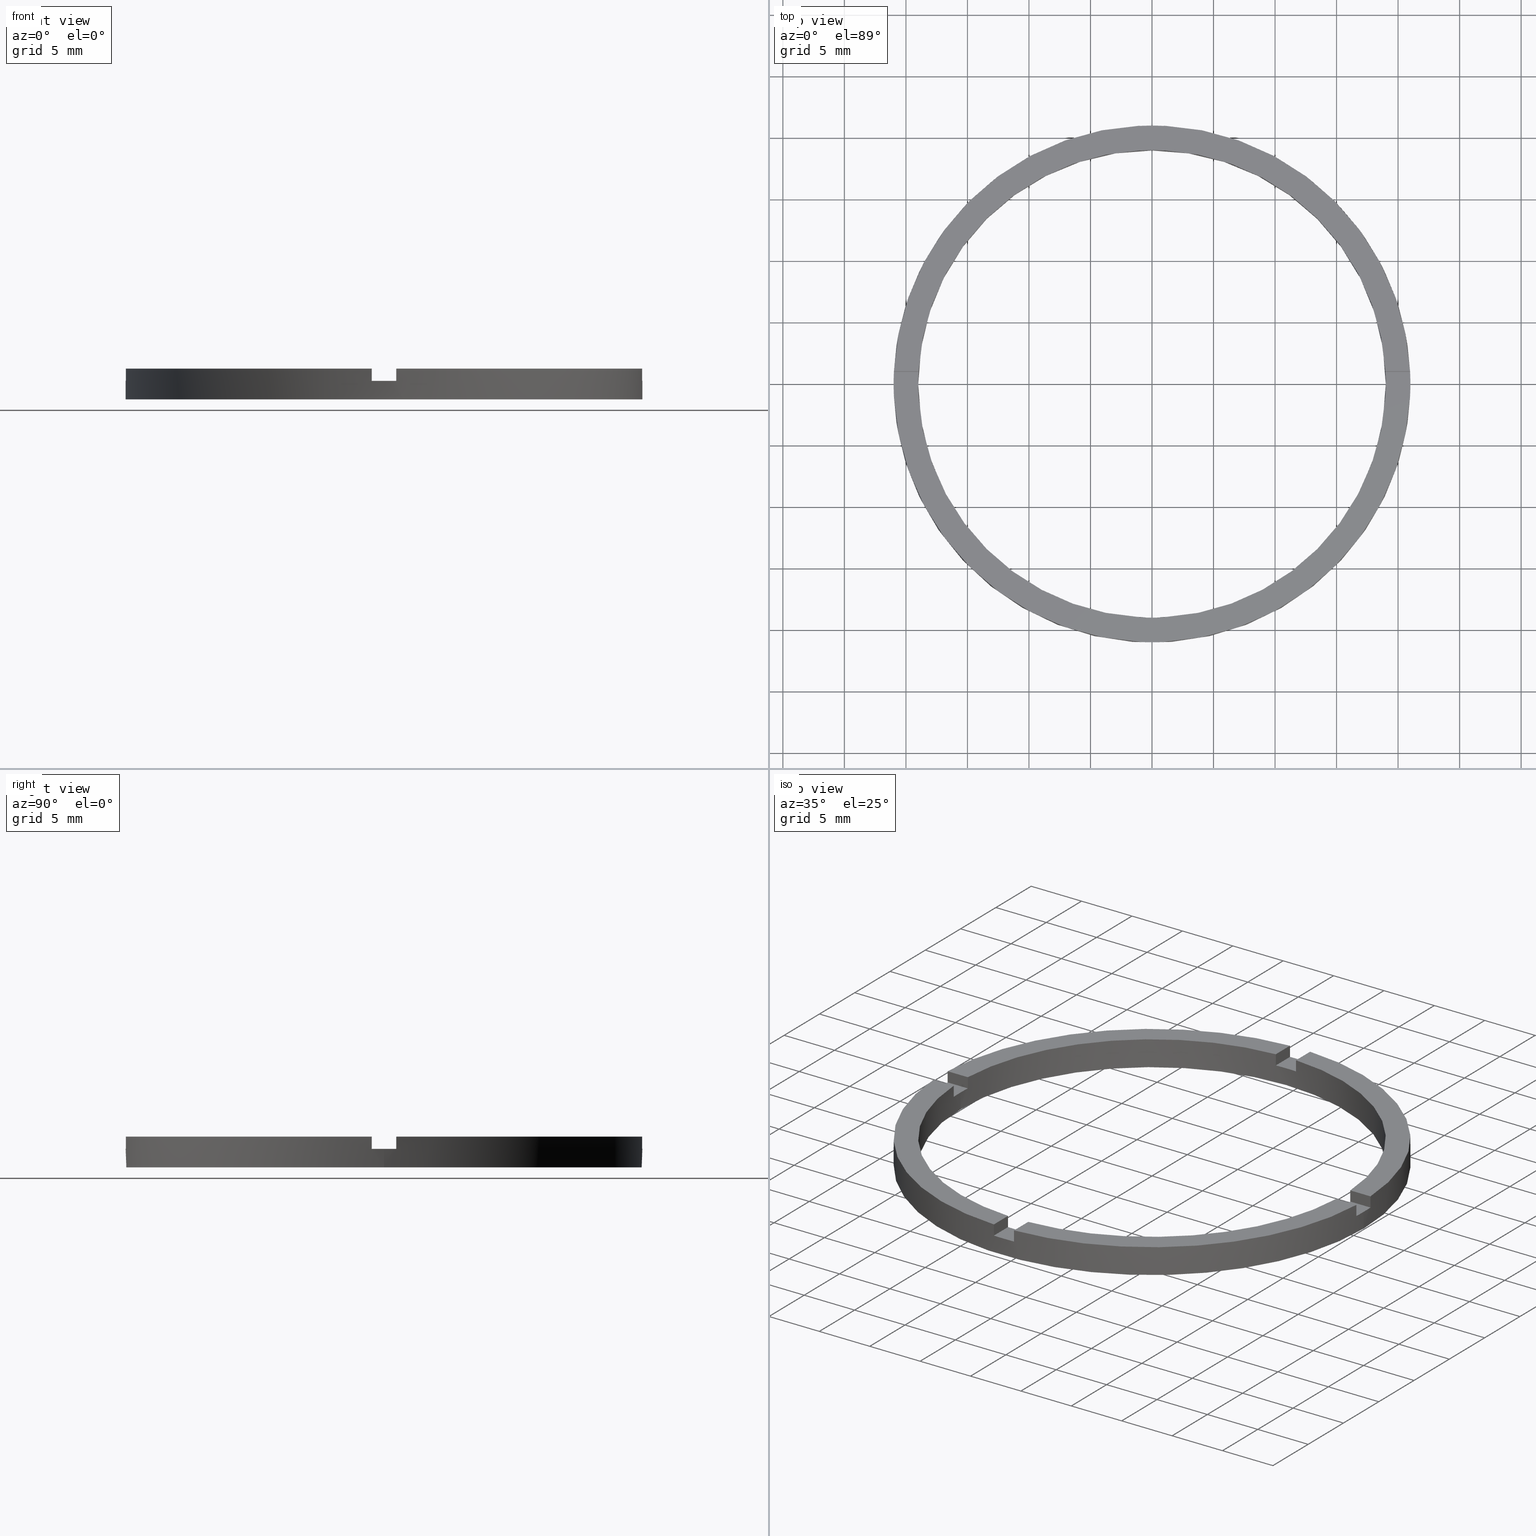
[diagram: canonical four-view strip — front | top / right | iso, engineering-drawing reading convention]
A machine part, canonical four-view strip (front | top / right | iso — engineering-drawing reading convention). The complete STEP part file that produces these views, byte-faithful:
ISO-10303-21;
HEADER;
FILE_DESCRIPTION (( 'STEP AP203' ),
    '1' );
FILE_NAME ('514089.step',
    '2024-12-26T02:36:29',
    ( 'MSI' ),
    ( '' ),
    'SwSTEP 2.0',
    'SolidWorks 2020',
    '' );
FILE_SCHEMA (( 'CONFIG_CONTROL_DESIGN' ));
ENDSEC;

DATA;
#1 = MECHANICAL_CONTEXT ( 'NONE', #243, 'mechanical' ) ;
#2 = EDGE_CURVE ( 'NONE', #498, #31, #642, .T. ) ;
#3 = CARTESIAN_POINT ( 'NONE',  ( -11.00000000000018652, 0.9999999999999770184, 1.500000000000000000 ) ) ;
#4 = EDGE_CURVE ( 'NONE', #311, #121, #358, .T. ) ;
#5 = CARTESIAN_POINT ( 'NONE',  ( -1.000000000000162759, -11.00000000000018119, 2.500000000000000000 ) ) ;
#6 = DIRECTION ( 'NONE',  ( 0.000000000000000000, 0.000000000000000000, 1.000000000000000000 ) ) ;
#7 = CARTESIAN_POINT ( 'NONE',  ( -19.00000000000000000, 0.000000000000000000, 2.500000000000000000 ) ) ;
#8 = CARTESIAN_POINT ( 'NONE',  ( 0.000000000000000000, 0.000000000000000000, 2.500000000000000000 ) ) ;
#9 = DIRECTION ( 'NONE',  ( 0.000000000000000000, 0.000000000000000000, 1.000000000000000000 ) ) ;
#10 = PRODUCT_RELATED_PRODUCT_CATEGORY ( 'detail', '', ( #645 ) ) ;
#11 = ORIENTED_EDGE ( 'NONE', *, *, #262, .F. ) ;
#12 = CARTESIAN_POINT ( 'NONE',  ( 0.000000000000000000, 0.000000000000000000, 1.500000000000000000 ) ) ;
#13 = ORIENTED_EDGE ( 'NONE', *, *, #660, .T. ) ;
#14 = CARTESIAN_POINT ( 'NONE',  ( -11.00000000000018652, -1.000000000000023093, 2.500000000000000000 ) ) ;
#15 = VERTEX_POINT ( 'NONE', #753 ) ;
#16 = ORIENTED_EDGE ( 'NONE', *, *, #94, .F. ) ;
#17 = EDGE_CURVE ( 'NONE', #326, #493, #382, .T. ) ;
#18 = ORIENTED_EDGE ( 'NONE', *, *, #527, .T. ) ;
#19 = VERTEX_POINT ( 'NONE', #142 ) ;
#20 = ORIENTED_EDGE ( 'NONE', *, *, #391, .T. ) ;
#21 = DIRECTION ( 'NONE',  ( -0.000000000000000000, -0.000000000000000000, -1.000000000000000000 ) ) ;
#22 = ORIENTED_EDGE ( 'NONE', *, *, #4, .F. ) ;
#23 = PLANE ( 'NONE',  #76 ) ;
#24 = AXIS2_PLACEMENT_3D ( 'NONE', #198, #324, #559 ) ;
#25 = ORIENTED_EDGE ( 'NONE', *, *, #89, .T. ) ;
#26 = ORIENTED_EDGE ( 'NONE', *, *, #439, .T. ) ;
#27 = ORIENTED_EDGE ( 'NONE', *, *, #251, .T. ) ;
#28 = CARTESIAN_POINT ( 'NONE',  ( -20.97617696340303084, -1.000000000000024647, 2.500000000000000000 ) ) ;
#29 = ORIENTED_EDGE ( 'NONE', *, *, #262, .T. ) ;
#30 = PERSON_AND_ORGANIZATION ( #537, #307 ) ;
#31 = VERTEX_POINT ( 'NONE', #265 ) ;
#32 = LOCAL_TIME ( 10, 36, 29.00000000000000000, #565 ) ;
#33 = ORIENTED_EDGE ( 'NONE', *, *, #467, .F. ) ;
#34 = DIRECTION ( 'NONE',  ( 0.000000000000000000, 0.000000000000000000, 1.000000000000000000 ) ) ;
#35 = DIRECTION ( 'NONE',  ( -1.301042606982605074E-16, 1.000000000000000000, 0.000000000000000000 ) ) ;
#36 = VERTEX_POINT ( 'NONE', #697 ) ;
#37 = DIRECTION ( 'NONE',  ( 0.000000000000000000, 0.000000000000000000, 1.000000000000000000 ) ) ;
#38 = CARTESIAN_POINT ( 'NONE',  ( -19.00000000000000000, 0.000000000000000000, 0.000000000000000000 ) ) ;
#39 = ORIENTED_EDGE ( 'NONE', *, *, #299, .T. ) ;
#40 = ORIENTED_EDGE ( 'NONE', *, *, #507, .F. ) ;
#41 = PERSON_AND_ORGANIZATION ( #537, #307 ) ;
#42 = CARTESIAN_POINT ( 'NONE',  ( -18.97366596101027625, 0.9999999999999756861, 2.500000000000000000 ) ) ;
#43 = PLANE ( 'NONE',  #343 ) ;
#44 = VERTEX_POINT ( 'NONE', #335 ) ;
#45 = PERSON_AND_ORGANIZATION ( #537, #307 ) ;
#46 = DIRECTION ( 'NONE',  ( 0.000000000000000000, 0.000000000000000000, 1.000000000000000000 ) ) ;
#47 = EDGE_CURVE ( 'NONE', #498, #728, #123, .T. ) ;
#48 = ORIENTED_EDGE ( 'NONE', *, *, #614, .F. ) ;
#49 = PERSON_AND_ORGANIZATION ( #537, #307 ) ;
#50 = CARTESIAN_POINT ( 'NONE',  ( -1.000000000000161204, -20.97617696340302018, 2.500000000000000000 ) ) ;
#51 = ORIENTED_EDGE ( 'NONE', *, *, #196, .F. ) ;
#52 = APPROVAL_STATUS ( 'not_yet_approved' ) ;
#53 = EDGE_LOOP ( 'NONE', ( #203, #314, #626, #204, #226, #585 ) ) ;
#54 = DIRECTION ( 'NONE',  ( 1.000000000000000000, 0.000000000000000000, 0.000000000000000000 ) ) ;
#55 = CARTESIAN_POINT ( 'NONE',  ( 0.9999999999998380185, -20.97617696340303794, 1.500000000000000000 ) ) ;
#56 = VERTEX_POINT ( 'NONE', #149 ) ;
#57 = DIRECTION ( 'NONE',  ( 0.000000000000000000, 0.000000000000000000, 1.000000000000000000 ) ) ;
#58 = ORIENTED_EDGE ( 'NONE', *, *, #186, .T. ) ;
#59 = CARTESIAN_POINT ( 'NONE',  ( 0.000000000000000000, 0.000000000000000000, 1.500000000000000000 ) ) ;
#60 = AXIS2_PLACEMENT_3D ( 'NONE', #463, #91, #768 ) ;
#61 = VERTEX_POINT ( 'NONE', #219 ) ;
#62 = LOCAL_TIME ( 10, 36, 29.00000000000000000, #330 ) ;
#63 = ADVANCED_FACE ( 'NONE', ( #92 ), #638, .T. ) ;
#64 =( NAMED_UNIT ( * ) PLANE_ANGLE_UNIT ( ) SI_UNIT ( $, .RADIAN. ) );
#65 = PRODUCT_DEFINITION_FORMATION_WITH_SPECIFIED_SOURCE ( '�κ�', '', #645, .NOT_KNOWN. ) ;
#66 = CALENDAR_DATE ( 2024, 26, 12 ) ;
#67 = DIRECTION ( 'NONE',  ( -0.000000000000000000, -0.000000000000000000, -1.000000000000000000 ) ) ;
#68 = DIRECTION ( 'NONE',  ( 0.000000000000000000, 1.000000000000000000, 0.000000000000000000 ) ) ;
#69 = AXIS2_PLACEMENT_3D ( 'NONE', #228, #37, #275 ) ;
#70 = CARTESIAN_POINT ( 'NONE',  ( 0.9999999999999740208, 18.97366596101027270, 2.500000000000000000 ) ) ;
#71 = DATE_AND_TIME ( #75, #597 ) ;
#72 = CARTESIAN_POINT ( 'NONE',  ( 18.97366596101028335, 0.9999999999998416822, 2.500000000000000000 ) ) ;
#73 = DATE_AND_TIME ( #613, #340 ) ;
#74 = COORDINATED_UNIVERSAL_TIME_OFFSET ( 8, 0, .AHEAD. ) ;
#75 = CALENDAR_DATE ( 2024, 26, 12 ) ;
#76 = AXIS2_PLACEMENT_3D ( 'NONE', #267, #392, #363 ) ;
#77 = DIRECTION ( 'NONE',  ( -0.000000000000000000, -1.000000000000000000, -0.000000000000000000 ) ) ;
#78 = CARTESIAN_POINT ( 'NONE',  ( -1.000000000000025535, 18.97366596101027625, 2.500000000000000000 ) ) ;
#79 = DIRECTION ( 'NONE',  ( 1.000000000000000000, 1.734723475976806848E-16, -0.000000000000000000 ) ) ;
#80 = DIRECTION ( 'NONE',  ( 0.000000000000000000, 0.000000000000000000, 1.000000000000000000 ) ) ;
#81 = AXIS2_PLACEMENT_3D ( 'NONE', #465, #256, #524 ) ;
#82 = CARTESIAN_POINT ( 'NONE',  ( -1.000000000000025535, 11.00000000000000178, 1.500000000000000000 ) ) ;
#83 = DIRECTION ( 'NONE',  ( 1.000000000000000000, 4.336808689942017120E-17, 0.000000000000000000 ) ) ;
#84 = PLANE ( 'NONE',  #164 ) ;
#85 = DIRECTION ( 'NONE',  ( 0.000000000000000000, 0.000000000000000000, 1.000000000000000000 ) ) ;
#86 = PRODUCT_DEFINITION ( 'δ֪', '', #65, #618 ) ;
#87 = DIRECTION ( 'NONE',  ( 0.000000000000000000, -0.000000000000000000, 1.000000000000000000 ) ) ;
#88 = CARTESIAN_POINT ( 'NONE',  ( 0.9999999999998371303, -11.00000000000018119, 1.500000000000000000 ) ) ;
#89 = EDGE_CURVE ( 'NONE', #206, #61, #653, .T. ) ;
#90 = PLANE ( 'NONE',  #152 ) ;
#91 = DIRECTION ( 'NONE',  ( 0.000000000000000000, 0.000000000000000000, 1.000000000000000000 ) ) ;
#92 = FACE_OUTER_BOUND ( 'NONE', #648, .T. ) ;
#93 = LINE ( 'NONE', #162, #107 ) ;
#94 = EDGE_CURVE ( 'NONE', #543, #287, #93, .T. ) ;
#95 = DIRECTION ( 'NONE',  ( -1.000000000000000000, -4.336808689942017120E-17, -0.000000000000000000 ) ) ;
#96 = ORIENTED_EDGE ( 'NONE', *, *, #439, .F. ) ;
#97 = CC_DESIGN_DATE_AND_TIME_ASSIGNMENT ( #608, #488, ( #86 ) ) ;
#98 = VECTOR ( 'NONE', #445, 1000.000000000000000 ) ;
#99 = CYLINDRICAL_SURFACE ( 'NONE', #316, 21.00000000000000000 ) ;
#100 = PERSON_AND_ORGANIZATION_ROLE ( 'creator' ) ;
#101 = CARTESIAN_POINT ( 'NONE',  ( -20.97617696340303439, 0.9999999999999753530, 1.500000000000000000 ) ) ;
#102 = DIRECTION ( 'NONE',  ( -0.000000000000000000, -0.000000000000000000, -1.000000000000000000 ) ) ;
#103 = EDGE_CURVE ( 'NONE', #492, #300, #359, .T. ) ;
#104 = FACE_OUTER_BOUND ( 'NONE', #53, .T. ) ;
#105 = ORIENTED_EDGE ( 'NONE', *, *, #761, .T. ) ;
#106 = CARTESIAN_POINT ( 'NONE',  ( 0.9999999999999740208, 20.97617696340303084, 1.500000000000000000 ) ) ;
#107 = VECTOR ( 'NONE', #557, 1000.000000000000000 ) ;
#108 = EDGE_CURVE ( 'NONE', #571, #250, #629, .T. ) ;
#109 = CARTESIAN_POINT ( 'NONE',  ( -21.00000000000000000, 0.000000000000000000, 1.500000000000000000 ) ) ;
#110 =( NAMED_UNIT ( * ) SI_UNIT ( $, .STERADIAN. ) SOLID_ANGLE_UNIT ( ) );
#111 = FACE_OUTER_BOUND ( 'NONE', #278, .T. ) ;
#112 = DIRECTION ( 'NONE',  ( 1.000000000000000000, 0.000000000000000000, 0.000000000000000000 ) ) ;
#113 = VECTOR ( 'NONE', #736, 1000.000000000000000 ) ;
#114 = AXIS2_PLACEMENT_3D ( 'NONE', #350, #415, #486 ) ;
#115 = LINE ( 'NONE', #437, #132 ) ;
#116 = CIRCLE ( 'NONE', #81, 19.00000000000000000 ) ;
#117 = EDGE_CURVE ( 'NONE', #222, #253, #356, .T. ) ;
#118 = CIRCLE ( 'NONE', #264, 21.00000000000000000 ) ;
#119 = CARTESIAN_POINT ( 'NONE',  ( -18.97366596101027625, 0.9999999999999756861, 2.500000000000000000 ) ) ;
#120 = VECTOR ( 'NONE', #484, 1000.000000000000000 ) ;
#121 = VERTEX_POINT ( 'NONE', #42 ) ;
#122 = ORIENTED_EDGE ( 'NONE', *, *, #430, .F. ) ;
#123 = LINE ( 'NONE', #760, #651 ) ;
#124 = CARTESIAN_POINT ( 'NONE',  ( 20.97617696340304150, 0.9999999999998416822, 2.500000000000000000 ) ) ;
#125 = LINE ( 'NONE', #5, #669 ) ;
#126 = AXIS2_PLACEMENT_3D ( 'NONE', #221, #338, #654 ) ;
#127 = CIRCLE ( 'NONE', #396, 21.00000000000000000 ) ;
#128 = EDGE_CURVE ( 'NONE', #492, #717, #116, .T. ) ;
#129 = CC_DESIGN_SECURITY_CLASSIFICATION ( #520, ( #65 ) ) ;
#130 = LINE ( 'NONE', #743, #387 ) ;
#131 = LINE ( 'NONE', #78, #390 ) ;
#132 = VECTOR ( 'NONE', #320, 1000.000000000000000 ) ;
#133 = CARTESIAN_POINT ( 'NONE',  ( 0.000000000000000000, 0.000000000000000000, 2.500000000000000000 ) ) ;
#134 = DIRECTION ( 'NONE',  ( -0.000000000000000000, -0.000000000000000000, -1.000000000000000000 ) ) ;
#135 = AXIS2_PLACEMENT_3D ( 'NONE', #530, #21, #286 ) ;
#136 = EDGE_CURVE ( 'NONE', #19, #543, #628, .T. ) ;
#137 = CARTESIAN_POINT ( 'NONE',  ( 0.000000000000000000, 0.000000000000000000, 1.500000000000000000 ) ) ;
#138 = CARTESIAN_POINT ( 'NONE',  ( 20.97617696340302373, -1.000000000000158318, 2.500000000000000000 ) ) ;
#139 = EDGE_CURVE ( 'NONE', #19, #15, #374, .T. ) ;
#140 = VECTOR ( 'NONE', #701, 1000.000000000000000 ) ;
#141 = FACE_OUTER_BOUND ( 'NONE', #562, .T. ) ;
#142 = CARTESIAN_POINT ( 'NONE',  ( 21.00000000000000000, 2.571758278209441661E-15, 1.500000000000000000 ) ) ;
#143 = VECTOR ( 'NONE', #270, 1000.000000000000000 ) ;
#144 = LINE ( 'NONE', #248, #689 ) ;
#145 = CARTESIAN_POINT ( 'NONE',  ( 0.000000000000000000, 0.000000000000000000, 1.500000000000000000 ) ) ;
#146 = FACE_OUTER_BOUND ( 'NONE', #503, .T. ) ;
#147 = EDGE_CURVE ( 'NONE', #493, #717, #383, .T. ) ;
#148 = CIRCLE ( 'NONE', #433, 21.00000000000000000 ) ;
#149 = CARTESIAN_POINT ( 'NONE',  ( -1.000000000000025091, 18.97366596101027270, 1.500000000000000000 ) ) ;
#150 = FACE_OUTER_BOUND ( 'NONE', #195, .T. ) ;
#151 = PLANE ( 'NONE',  #505 ) ;
#152 = AXIS2_PLACEMENT_3D ( 'NONE', #289, #405, #478 ) ;
#153 = VECTOR ( 'NONE', #718, 1000.000000000000000 ) ;
#154 = FACE_BOUND ( 'NONE', #472, .T. ) ;
#155 = EDGE_CURVE ( 'NONE', #748, #515, #118, .T. ) ;
#156 = VECTOR ( 'NONE', #95, 1000.000000000000000 ) ;
#157 = LINE ( 'NONE', #72, #406 ) ;
#158 = CARTESIAN_POINT ( 'NONE',  ( -20.97617696340303439, 0.9999999999999753530, 2.500000000000000000 ) ) ;
#159 = CYLINDRICAL_SURFACE ( 'NONE', #135, 19.00000000000000000 ) ;
#160 = PERSON_AND_ORGANIZATION_ROLE ( 'creator' ) ;
#161 = FACE_OUTER_BOUND ( 'NONE', #649, .T. ) ;
#162 = CARTESIAN_POINT ( 'NONE',  ( 10.99999999999999645, 0.9999999999998412381, 1.500000000000000000 ) ) ;
#163 = DIRECTION ( 'NONE',  ( 1.000000000000000000, 1.734723475976806848E-16, 0.000000000000000000 ) ) ;
#164 = AXIS2_PLACEMENT_3D ( 'NONE', #339, #393, #163 ) ;
#165 = CIRCLE ( 'NONE', #69, 19.00000000000000000 ) ;
#166 = CARTESIAN_POINT ( 'NONE',  ( 0.000000000000000000, 0.000000000000000000, 0.000000000000000000 ) ) ;
#167 = ORIENTED_EDGE ( 'NONE', *, *, #258, .T. ) ;
#168 = EDGE_CURVE ( 'NONE', #319, #15, #632, .T. ) ;
#169 = CIRCLE ( 'NONE', #695, 19.00000000000000000 ) ;
#170 = CC_DESIGN_PERSON_AND_ORGANIZATION_ASSIGNMENT ( #327, #100, ( #65 ) ) ;
#171 = FACE_OUTER_BOUND ( 'NONE', #590, .T. ) ;
#172 = ADVANCED_FACE ( 'NONE', ( #111 ), #99, .T. ) ;
#173 = DATE_TIME_ROLE ( 'classification_date' ) ;
#174 = CIRCLE ( 'NONE', #579, 21.00000000000000000 ) ;
#175 = LINE ( 'NONE', #666, #442 ) ;
#176 = DIRECTION ( 'NONE',  ( -0.000000000000000000, -0.000000000000000000, -1.000000000000000000 ) ) ;
#177 = VERTEX_POINT ( 'NONE', #101 ) ;
#178 = CYLINDRICAL_SURFACE ( 'NONE', #681, 19.00000000000000000 ) ;
#179 = AXIS2_PLACEMENT_3D ( 'NONE', #641, #706, #730 ) ;
#180 = CARTESIAN_POINT ( 'NONE',  ( 0.000000000000000000, 0.000000000000000000, 1.500000000000000000 ) ) ;
#181 = PERSON_AND_ORGANIZATION_ROLE ( 'design_supplier' ) ;
#182 = LINE ( 'NONE', #82, #446 ) ;
#183 = ADVANCED_FACE ( 'NONE', ( #656 ), #777, .F. ) ;
#184 = CIRCLE ( 'NONE', #774, 19.00000000000000000 ) ;
#185 = DIRECTION ( 'NONE',  ( 1.000000000000000000, 0.000000000000000000, 0.000000000000000000 ) ) ;
#186 = EDGE_CURVE ( 'NONE', #748, #294, #386, .T. ) ;
#187 = ORIENTED_EDGE ( 'NONE', *, *, #299, .F. ) ;
#188 = VECTOR ( 'NONE', #763, 1000.000000000000000 ) ;
#189 = DIRECTION ( 'NONE',  ( 1.000000000000000000, 0.000000000000000000, 0.000000000000000000 ) ) ;
#190 = EDGE_LOOP ( 'NONE', ( #459, #624, #216, #581 ) ) ;
#191 = FACE_OUTER_BOUND ( 'NONE', #490, .T. ) ;
#192 = VECTOR ( 'NONE', #427, 1000.000000000000000 ) ;
#193 = EDGE_CURVE ( 'NONE', #455, #121, #354, .T. ) ;
#194 = DIRECTION ( 'NONE',  ( 1.000000000000000000, 0.000000000000000000, 0.000000000000000000 ) ) ;
#195 = EDGE_LOOP ( 'NONE', ( #473, #623, #218, #737 ) ) ;
#196 = EDGE_CURVE ( 'NONE', #728, #19, #644, .T. ) ;
#197 = DIRECTION ( 'NONE',  ( 0.000000000000000000, 0.000000000000000000, 1.000000000000000000 ) ) ;
#198 = CARTESIAN_POINT ( 'NONE',  ( 0.000000000000000000, 0.000000000000000000, 1.500000000000000000 ) ) ;
#199 = EDGE_CURVE ( 'NONE', #493, #577, #368, .T. ) ;
#200 = ORIENTED_EDGE ( 'NONE', *, *, #620, .T. ) ;
#201 = AXIS2_PLACEMENT_3D ( 'NONE', #207, #329, #261 ) ;
#202 = DIRECTION ( 'NONE',  ( 1.000000000000000000, 1.734723475976806848E-16, -0.000000000000000000 ) ) ;
#203 = ORIENTED_EDGE ( 'NONE', *, *, #334, .T. ) ;
#204 = ORIENTED_EDGE ( 'NONE', *, *, #128, .F. ) ;
#205 = PLANE ( 'NONE',  #594 ) ;
#206 = VERTEX_POINT ( 'NONE', #731 ) ;
#207 = CARTESIAN_POINT ( 'NONE',  ( 0.9999999999999744649, 11.00000000000000178, 1.500000000000000000 ) ) ;
#208 = ORIENTED_EDGE ( 'NONE', *, *, #225, .F. ) ;
#209 = CC_DESIGN_APPROVAL ( #282, ( #65 ) ) ;
#210 = ORIENTED_EDGE ( 'NONE', *, *, #17, .F. ) ;
#211 = ORIENTED_EDGE ( 'NONE', *, *, #193, .T. ) ;
#212 = ORIENTED_EDGE ( 'NONE', *, *, #709, .T. ) ;
#213 = AXIS2_PLACEMENT_3D ( 'NONE', #589, #57, #461 ) ;
#214 = ORIENTED_EDGE ( 'NONE', *, *, #266, .T. ) ;
#215 = DIRECTION ( 'NONE',  ( 0.000000000000000000, 1.000000000000000000, 0.000000000000000000 ) ) ;
#216 = ORIENTED_EDGE ( 'NONE', *, *, #591, .F. ) ;
#217 = DIRECTION ( 'NONE',  ( 1.000000000000000000, 0.000000000000000000, -0.000000000000000000 ) ) ;
#218 = ORIENTED_EDGE ( 'NONE', *, *, #540, .F. ) ;
#219 = CARTESIAN_POINT ( 'NONE',  ( 0.9999999999999740208, 20.97617696340303084, 2.500000000000000000 ) ) ;
#220 = ORIENTED_EDGE ( 'NONE', *, *, #709, .F. ) ;
#221 = CARTESIAN_POINT ( 'NONE',  ( 0.000000000000000000, 0.000000000000000000, 2.500000000000000000 ) ) ;
#222 = VERTEX_POINT ( 'NONE', #423 ) ;
#223 = CARTESIAN_POINT ( 'NONE',  ( -1.000000000000161204, -20.97617696340302018, 1.500000000000000000 ) ) ;
#224 = ORIENTED_EDGE ( 'NONE', *, *, #155, .F. ) ;
#225 = EDGE_CURVE ( 'NONE', #546, #36, #637, .T. ) ;
#226 = ORIENTED_EDGE ( 'NONE', *, *, #761, .F. ) ;
#227 = ORIENTED_EDGE ( 'NONE', *, *, #103, .T. ) ;
#228 = CARTESIAN_POINT ( 'NONE',  ( 0.000000000000000000, 0.000000000000000000, 0.000000000000000000 ) ) ;
#229 = EDGE_LOOP ( 'NONE', ( #220, #508, #214, #627 ) ) ;
#230 = CARTESIAN_POINT ( 'NONE',  ( -21.00000000000000000, 0.000000000000000000, 0.000000000000000000 ) ) ;
#231 = ORIENTED_EDGE ( 'NONE', *, *, #139, .F. ) ;
#232 = DIRECTION ( 'NONE',  ( -0.000000000000000000, 0.000000000000000000, 1.000000000000000000 ) ) ;
#233 = CARTESIAN_POINT ( 'NONE',  ( 0.9999999999998384625, -20.97617696340304150, 2.500000000000000000 ) ) ;
#234 = ORIENTED_EDGE ( 'NONE', *, *, #2, .F. ) ;
#235 = CARTESIAN_POINT ( 'NONE',  ( -1.000000000000161648, -20.97617696340302373, 2.500000000000000000 ) ) ;
#236 = ORIENTED_EDGE ( 'NONE', *, *, #725, .F. ) ;
#237 = SECURITY_CLASSIFICATION_LEVEL ( 'unclassified' ) ;
#238 = ADVANCED_FACE ( 'NONE', ( #104 ), #90, .T. ) ;
#239 = DIRECTION ( 'NONE',  ( 1.000000000000000000, 0.000000000000000000, 0.000000000000000000 ) ) ;
#240 = ORIENTED_EDGE ( 'NONE', *, *, #147, .F. ) ;
#241 = ORIENTED_EDGE ( 'NONE', *, *, #128, .T. ) ;
#242 = CARTESIAN_POINT ( 'NONE',  ( -1.000000000000162759, -11.00000000000018119, 1.500000000000000000 ) ) ;
#243 = APPLICATION_CONTEXT ( 'configuration controlled 3d designs of mechanical parts and assemblies' ) ;
#244 = ADVANCED_FACE ( 'NONE', ( #377 ), #298, .T. ) ;
#245 = CC_DESIGN_PERSON_AND_ORGANIZATION_ASSIGNMENT ( #41, #160, ( #86 ) ) ;
#246 = DIRECTION ( 'NONE',  ( -1.000000000000000000, -1.734723475976806848E-16, 0.000000000000000000 ) ) ;
#247 = ORIENTED_EDGE ( 'NONE', *, *, #536, .F. ) ;
#248 = CARTESIAN_POINT ( 'NONE',  ( -21.00000000000000000, 0.000000000000000000, 2.500000000000000000 ) ) ;
#249 = ORIENTED_EDGE ( 'NONE', *, *, #4, .T. ) ;
#250 = VERTEX_POINT ( 'NONE', #724 ) ;
#251 = EDGE_CURVE ( 'NONE', #719, #36, #646, .T. ) ;
#252 = AXIS2_PLACEMENT_3D ( 'NONE', #180, #676, #617 ) ;
#253 = VERTEX_POINT ( 'NONE', #70 ) ;
#254 = DIRECTION ( 'NONE',  ( -0.000000000000000000, -0.000000000000000000, -1.000000000000000000 ) ) ;
#255 = CARTESIAN_POINT ( 'NONE',  ( 21.00000000000000000, 2.571758278209441661E-15, 2.500000000000000000 ) ) ;
#256 = DIRECTION ( 'NONE',  ( 0.000000000000000000, 0.000000000000000000, 1.000000000000000000 ) ) ;
#257 = DIRECTION ( 'NONE',  ( 0.000000000000000000, 0.000000000000000000, 1.000000000000000000 ) ) ;
#258 = EDGE_CURVE ( 'NONE', #719, #304, #378, .T. ) ;
#259 = CARTESIAN_POINT ( 'NONE',  ( 0.000000000000000000, 0.000000000000000000, 0.000000000000000000 ) ) ;
#260 = AXIS2_PLACEMENT_3D ( 'NONE', #283, #402, #474 ) ;
#261 = DIRECTION ( 'NONE',  ( 0.000000000000000000, 0.000000000000000000, -1.000000000000000000 ) ) ;
#262 = EDGE_CURVE ( 'NONE', #308, #372, #115, .T. ) ;
#263 = PLANE ( 'NONE',  #741 ) ;
#264 = AXIS2_PLACEMENT_3D ( 'NONE', #533, #232, #54 ) ;
#265 = CARTESIAN_POINT ( 'NONE',  ( 18.97366596101026914, -1.000000000000158318, 2.500000000000000000 ) ) ;
#266 = EDGE_CURVE ( 'NONE', #253, #61, #130, .T. ) ;
#267 = CARTESIAN_POINT ( 'NONE',  ( -1.000000000000162759, -11.00000000000018119, 1.500000000000000000 ) ) ;
#268 = DIRECTION ( 'NONE',  ( -0.000000000000000000, -0.000000000000000000, -1.000000000000000000 ) ) ;
#269 = AXIS2_PLACEMENT_3D ( 'NONE', #541, #612, #491 ) ;
#270 = DIRECTION ( 'NONE',  ( -0.000000000000000000, -1.000000000000000000, -0.000000000000000000 ) ) ;
#271 = CARTESIAN_POINT ( 'NONE',  ( 0.000000000000000000, 0.000000000000000000, 2.500000000000000000 ) ) ;
#272 = LOCAL_TIME ( 10, 36, 29.00000000000000000, #315 ) ;
#273 = CARTESIAN_POINT ( 'NONE',  ( 0.000000000000000000, 0.000000000000000000, 1.500000000000000000 ) ) ;
#274 = ORIENTED_EDGE ( 'NONE', *, *, #47, .F. ) ;
#275 = DIRECTION ( 'NONE',  ( 1.000000000000000000, 0.000000000000000000, 0.000000000000000000 ) ) ;
#276 = ORIENTED_EDGE ( 'NONE', *, *, #450, .T. ) ;
#277 = DIRECTION ( 'NONE',  ( 0.000000000000000000, 0.000000000000000000, 1.000000000000000000 ) ) ;
#278 = EDGE_LOOP ( 'NONE', ( #231, #51, #504, #733, #297, #224, #58, #755, #554, #555, #745, #462 ) ) ;
#279 = EDGE_CURVE ( 'NONE', #206, #543, #661, .T. ) ;
#280 = ORIENTED_EDGE ( 'NONE', *, *, #186, .F. ) ;
#281 = APPLICATION_CONTEXT ( 'configuration controlled 3d designs of mechanical parts and assemblies' ) ;
#282 = APPROVAL ( #662, 'δָ��' ) ;
#283 = CARTESIAN_POINT ( 'NONE',  ( 0.000000000000000000, 0.000000000000000000, 0.000000000000000000 ) ) ;
#284 = ORIENTED_EDGE ( 'NONE', *, *, #332, .T. ) ;
#285 = CARTESIAN_POINT ( 'NONE',  ( 0.000000000000000000, 0.000000000000000000, 1.500000000000000000 ) ) ;
#286 = DIRECTION ( 'NONE',  ( -1.000000000000000000, 0.000000000000000000, 0.000000000000000000 ) ) ;
#287 = VERTEX_POINT ( 'NONE', #502 ) ;
#288 = FACE_OUTER_BOUND ( 'NONE', #738, .T. ) ;
#289 = CARTESIAN_POINT ( 'NONE',  ( 0.000000000000000000, 0.000000000000000000, 1.500000000000000000 ) ) ;
#290 = ORIENTED_EDGE ( 'NONE', *, *, #660, .F. ) ;
#291 = FACE_OUTER_BOUND ( 'NONE', #306, .T. ) ;
#292 = EDGE_CURVE ( 'NONE', #577, #294, #125, .T. ) ;
#293 = ORIENTED_EDGE ( 'NONE', *, *, #139, .T. ) ;
#294 = VERTEX_POINT ( 'NONE', #50 ) ;
#295 = CARTESIAN_POINT ( 'NONE',  ( -1.000000000000025535, 11.00000000000000178, 2.500000000000000000 ) ) ;
#296 = DIRECTION ( 'NONE',  ( -0.000000000000000000, 0.000000000000000000, 1.000000000000000000 ) ) ;
#297 = ORIENTED_EDGE ( 'NONE', *, *, #677, .T. ) ;
#298 = PLANE ( 'NONE',  #114 ) ;
#299 = EDGE_CURVE ( 'NONE', #771, #31, #665, .T. ) ;
#300 = VERTEX_POINT ( 'NONE', #38 ) ;
#301 = ORIENTED_EDGE ( 'NONE', *, *, #108, .T. ) ;
#302 = CLOSED_SHELL ( 'NONE', ( #670, #723, #244, #607, #345, #489, #673, #172, #659, #479, #542, #238, #470, #414, #716, #780, #783, #351, #183, #534, #63 ) ) ;
#303 = AXIS2_PLACEMENT_3D ( 'NONE', #782, #657, #189 ) ;
#304 = VERTEX_POINT ( 'NONE', #158 ) ;
#305 = CALENDAR_DATE ( 2024, 26, 12 ) ;
#306 = EDGE_LOOP ( 'NONE', ( #274, #380, #480, #640 ) ) ;
#307 = ORGANIZATION ( 'δָ��', 'δָ��', '' ) ;
#308 = VERTEX_POINT ( 'NONE', #523 ) ;
#309 = PERSON_AND_ORGANIZATION_ROLE ( 'classification_officer' ) ;
#310 = ORIENTED_EDGE ( 'NONE', *, *, #688, .T. ) ;
#311 = VERTEX_POINT ( 'NONE', #596 ) ;
#312 = APPROVAL_DATE_TIME ( #572, #713 ) ;
#313 = ORIENTED_EDGE ( 'NONE', *, *, #117, .F. ) ;
#314 = ORIENTED_EDGE ( 'NONE', *, *, #576, .T. ) ;
#315 = COORDINATED_UNIVERSAL_TIME_OFFSET ( 8, 0, .AHEAD. ) ;
#316 = AXIS2_PLACEMENT_3D ( 'NONE', #528, #602, #663 ) ;
#317 = ORIENTED_EDGE ( 'NONE', *, *, #527, .F. ) ;
#318 = EDGE_CURVE ( 'NONE', #44, #253, #388, .T. ) ;
#319 = VERTEX_POINT ( 'NONE', #230 ) ;
#320 = DIRECTION ( 'NONE',  ( -0.000000000000000000, -0.000000000000000000, -1.000000000000000000 ) ) ;
#321 = CC_DESIGN_DATE_AND_TIME_ASSIGNMENT ( #71, #173, ( #520 ) ) ;
#322 = DATE_AND_TIME ( #582, #62 ) ;
#323 = ORIENTED_EDGE ( 'NONE', *, *, #193, .F. ) ;
#324 = DIRECTION ( 'NONE',  ( -0.000000000000000000, 0.000000000000000000, 1.000000000000000000 ) ) ;
#325 = ORIENTED_EDGE ( 'NONE', *, *, #353, .T. ) ;
#326 = VERTEX_POINT ( 'NONE', #400 ) ;
#327 = PERSON_AND_ORGANIZATION ( #537, #307 ) ;
#328 = CARTESIAN_POINT ( 'NONE',  ( 0.000000000000000000, 0.000000000000000000, 1.500000000000000000 ) ) ;
#329 = DIRECTION ( 'NONE',  ( 1.000000000000000000, -0.000000000000000000, 0.000000000000000000 ) ) ;
#330 = COORDINATED_UNIVERSAL_TIME_OFFSET ( 8, 0, .AHEAD. ) ;
#331 = PERSON_AND_ORGANIZATION ( #537, #307 ) ;
#332 = EDGE_CURVE ( 'NONE', #311, #56, #131, .T. ) ;
#333 = CARTESIAN_POINT ( 'NONE',  ( 0.000000000000000000, 0.000000000000000000, 2.500000000000000000 ) ) ;
#334 = EDGE_CURVE ( 'NONE', #177, #458, #127, .T. ) ;
#335 = CARTESIAN_POINT ( 'NONE',  ( 0.9999999999999740208, 18.97366596101027270, 1.500000000000000000 ) ) ;
#336 = PLANE ( 'NONE',  #457 ) ;
#337 = PRODUCT_DEFINITION_SHAPE ( 'NONE', 'NONE',  #86 ) ;
#338 = DIRECTION ( 'NONE',  ( 0.000000000000000000, 0.000000000000000000, 1.000000000000000000 ) ) ;
#339 = CARTESIAN_POINT ( 'NONE',  ( -11.00000000000018652, -1.000000000000023093, 1.500000000000000000 ) ) ;
#340 = LOCAL_TIME ( 10, 36, 29.00000000000000000, #74 ) ;
#341 = DIRECTION ( 'NONE',  ( 1.000000000000000000, 0.000000000000000000, -0.000000000000000000 ) ) ;
#342 = CARTESIAN_POINT ( 'NONE',  ( 10.99999999999999645, 0.9999999999998412381, 2.500000000000000000 ) ) ;
#343 = AXIS2_PLACEMENT_3D ( 'NONE', #88, #349, #35 ) ;
#344 = SHAPE_DEFINITION_REPRESENTATION ( #337, #630 ) ;
#345 = ADVANCED_FACE ( 'NONE', ( #191 ), #263, .T. ) ;
#346 = PERSON_AND_ORGANIZATION ( #537, #307 ) ;
#347 = CARTESIAN_POINT ( 'NONE',  ( -1.000000000000025091, 20.97617696340302729, 2.500000000000000000 ) ) ;
#348 = APPROVAL_ROLE ( '' ) ;
#349 = DIRECTION ( 'NONE',  ( 1.000000000000000000, 1.301042606982605074E-16, 0.000000000000000000 ) ) ;
#350 = CARTESIAN_POINT ( 'NONE',  ( 0.000000000000000000, 0.000000000000000000, 2.500000000000000000 ) ) ;
#351 = ADVANCED_FACE ( 'NONE', ( #702 ), #205, .T. ) ;
#352 = CARTESIAN_POINT ( 'NONE',  ( 0.000000000000000000, 0.000000000000000000, 0.000000000000000000 ) ) ;
#353 = EDGE_CURVE ( 'NONE', #300, #372, #184, .T. ) ;
#354 = LINE ( 'NONE', #119, #634 ) ;
#355 = CARTESIAN_POINT ( 'NONE',  ( -1.000000000000161648, -18.97366596101026204, 1.500000000000000000 ) ) ;
#356 = CIRCLE ( 'NONE', #604, 19.00000000000000000 ) ;
#357 = CARTESIAN_POINT ( 'NONE',  ( -20.97617696340303439, 0.9999999999999753530, 2.500000000000000000 ) ) ;
#358 = CIRCLE ( 'NONE', #712, 19.00000000000000000 ) ;
#359 = LINE ( 'NONE', #7, #360 ) ;
#360 = VECTOR ( 'NONE', #268, 1000.000000000000000 ) ;
#361 = DIRECTION ( 'NONE',  ( -1.734723475976806848E-16, 1.000000000000000000, 0.000000000000000000 ) ) ;
#362 = ORIENTED_EDGE ( 'NONE', *, *, #677, .F. ) ;
#363 = DIRECTION ( 'NONE',  ( 1.301042606982605074E-16, -1.000000000000000000, 0.000000000000000000 ) ) ;
#364 = ORIENTED_EDGE ( 'NONE', *, *, #391, .F. ) ;
#365 = VECTOR ( 'NONE', #399, 1000.000000000000000 ) ;
#366 = CARTESIAN_POINT ( 'NONE',  ( -1.000000000000025535, 20.97617696340303084, 2.500000000000000000 ) ) ;
#367 = ORIENTED_EDGE ( 'NONE', *, *, #279, .F. ) ;
#368 = CIRCLE ( 'NONE', #303, 19.00000000000000000 ) ;
#369 = AXIS2_PLACEMENT_3D ( 'NONE', #734, #592, #466 ) ;
#370 = ORIENTED_EDGE ( 'NONE', *, *, #292, .T. ) ;
#371 = PERSON_AND_ORGANIZATION_ROLE ( 'design_owner' ) ;
#372 = VERTEX_POINT ( 'NONE', #569 ) ;
#373 = CC_DESIGN_APPROVAL ( #453, ( #520 ) ) ;
#374 = LINE ( 'NONE', #255, #98 ) ;
#375 = DIRECTION ( 'NONE',  ( 0.000000000000000000, 0.000000000000000000, 1.000000000000000000 ) ) ;
#376 = CARTESIAN_POINT ( 'NONE',  ( -11.00000000000018652, -1.000000000000023093, 1.500000000000000000 ) ) ;
#377 = FACE_OUTER_BOUND ( 'NONE', #773, .T. ) ;
#378 = CIRCLE ( 'NONE', #497, 21.00000000000000000 ) ;
#379 = ORIENTED_EDGE ( 'NONE', *, *, #450, .F. ) ;
#380 = ORIENTED_EDGE ( 'NONE', *, *, #2, .T. ) ;
#381 = PLANE ( 'NONE',  #201 ) ;
#382 = LINE ( 'NONE', #14, #384 ) ;
#383 = LINE ( 'NONE', #411, #120 ) ;
#384 = VECTOR ( 'NONE', #79, 1000.000000000000000 ) ;
#385 = ORIENTED_EDGE ( 'NONE', *, *, #620, .F. ) ;
#386 = LINE ( 'NONE', #235, #365 ) ;
#387 = VECTOR ( 'NONE', #68, 1000.000000000000000 ) ;
#388 = LINE ( 'NONE', #708, #668 ) ;
#389 = DIRECTION ( 'NONE',  ( 1.000000000000000000, 4.336808689942017120E-17, 0.000000000000000000 ) ) ;
#390 = VECTOR ( 'NONE', #519, 1000.000000000000000 ) ;
#391 = EDGE_CURVE ( 'NONE', #36, #56, #182, .T. ) ;
#392 = DIRECTION ( 'NONE',  ( -1.000000000000000000, -1.301042606982605074E-16, 0.000000000000000000 ) ) ;
#393 = DIRECTION ( 'NONE',  ( 1.734723475976806848E-16, -1.000000000000000000, 0.000000000000000000 ) ) ;
#394 = EDGE_CURVE ( 'NONE', #728, #250, #703, .T. ) ;
#395 = CARTESIAN_POINT ( 'NONE',  ( 0.9999999999999744649, 20.97617696340303439, 2.500000000000000000 ) ) ;
#396 = AXIS2_PLACEMENT_3D ( 'NONE', #145, #9, #621 ) ;
#397 = DIRECTION ( 'NONE',  ( 1.000000000000000000, 0.000000000000000000, 0.000000000000000000 ) ) ;
#398 = CARTESIAN_POINT ( 'NONE',  ( 0.000000000000000000, 0.000000000000000000, 2.500000000000000000 ) ) ;
#399 = DIRECTION ( 'NONE',  ( 0.000000000000000000, 0.000000000000000000, 1.000000000000000000 ) ) ;
#400 = CARTESIAN_POINT ( 'NONE',  ( -20.97617696340303084, -1.000000000000024647, 2.500000000000000000 ) ) ;
#401 = CIRCLE ( 'NONE', #213, 19.00000000000000000 ) ;
#402 = DIRECTION ( 'NONE',  ( 0.000000000000000000, 0.000000000000000000, 1.000000000000000000 ) ) ;
#403 = DIRECTION ( 'NONE',  ( -1.000000000000000000, 0.000000000000000000, 0.000000000000000000 ) ) ;
#404 = FACE_OUTER_BOUND ( 'NONE', #229, .T. ) ;
#405 = DIRECTION ( 'NONE',  ( 0.000000000000000000, 0.000000000000000000, 1.000000000000000000 ) ) ;
#406 = VECTOR ( 'NONE', #134, 1000.000000000000000 ) ;
#407 = AXIS2_PLACEMENT_3D ( 'NONE', #460, #412, #521 ) ;
#408 = FACE_OUTER_BOUND ( 'NONE', #483, .T. ) ;
#409 = CARTESIAN_POINT ( 'NONE',  ( -20.97617696340303084, -1.000000000000024647, 1.500000000000000000 ) ) ;
#410 = LINE ( 'NONE', #468, #687 ) ;
#411 = CARTESIAN_POINT ( 'NONE',  ( -18.97366596101027625, -1.000000000000024203, 2.500000000000000000 ) ) ;
#412 = DIRECTION ( 'NONE',  ( 0.000000000000000000, 0.000000000000000000, 1.000000000000000000 ) ) ;
#413 = LINE ( 'NONE', #655, #425 ) ;
#414 = ADVANCED_FACE ( 'NONE', ( #449 ), #23, .F. ) ;
#415 = DIRECTION ( 'NONE',  ( 0.000000000000000000, 0.000000000000000000, 1.000000000000000000 ) ) ;
#416 = VECTOR ( 'NONE', #215, 1000.000000000000000 ) ;
#417 = VECTOR ( 'NONE', #432, 1000.000000000000000 ) ;
#418 = DIRECTION ( 'NONE',  ( 0.000000000000000000, 0.000000000000000000, 1.000000000000000000 ) ) ;
#419 = APPLICATION_PROTOCOL_DEFINITION ( 'international standard', 'config_control_design', 1994, #281 ) ;
#420 = CC_DESIGN_PERSON_AND_ORGANIZATION_ASSIGNMENT ( #45, #371, ( #645 ) ) ;
#421 = LINE ( 'NONE', #395, #431 ) ;
#422 = APPLICATION_PROTOCOL_DEFINITION ( 'international standard', 'config_control_design', 1994, #243 ) ;
#423 = CARTESIAN_POINT ( 'NONE',  ( 18.97366596101028335, 0.9999999999998416822, 2.500000000000000000 ) ) ;
#424 = LINE ( 'NONE', #715, #434 ) ;
#425 = VECTOR ( 'NONE', #779, 1000.000000000000000 ) ;
#426 = CIRCLE ( 'NONE', #252, 21.00000000000000000 ) ;
#427 = DIRECTION ( 'NONE',  ( 0.000000000000000000, 0.000000000000000000, 1.000000000000000000 ) ) ;
#428 = CARTESIAN_POINT ( 'NONE',  ( 0.000000000000000000, 0.000000000000000000, 1.500000000000000000 ) ) ;
#429 = LINE ( 'NONE', #767, #416 ) ;
#430 = EDGE_CURVE ( 'NONE', #455, #177, #705, .T. ) ;
#431 = VECTOR ( 'NONE', #85, 1000.000000000000000 ) ;
#432 = DIRECTION ( 'NONE',  ( 1.301042606982605074E-16, -1.000000000000000000, 0.000000000000000000 ) ) ;
#433 = AXIS2_PLACEMENT_3D ( 'NONE', #522, #770, #239 ) ;
#434 = VECTOR ( 'NONE', #778, 1000.000000000000000 ) ;
#435 = CARTESIAN_POINT ( 'NONE',  ( -11.00000000000018652, 0.9999999999999770184, 1.500000000000000000 ) ) ;
#436 = FACE_OUTER_BOUND ( 'NONE', #564, .T. ) ;
#437 = CARTESIAN_POINT ( 'NONE',  ( 19.00000000000000000, 2.326828918379970970E-15, 2.500000000000000000 ) ) ;
#438 = CYLINDRICAL_SURFACE ( 'NONE', #531, 21.00000000000000000 ) ;
#439 = EDGE_CURVE ( 'NONE', #177, #304, #707, .T. ) ;
#440 = VECTOR ( 'NONE', #202, 1000.000000000000000 ) ;
#441 = LINE ( 'NONE', #233, #153 ) ;
#442 = VECTOR ( 'NONE', #389, 1000.000000000000000 ) ;
#443 = EDGE_CURVE ( 'NONE', #575, #577, #444, .T. ) ;
#444 = LINE ( 'NONE', #496, #690 ) ;
#445 = DIRECTION ( 'NONE',  ( -0.000000000000000000, -0.000000000000000000, -1.000000000000000000 ) ) ;
#446 = VECTOR ( 'NONE', #77, 1000.000000000000000 ) ;
#447 = AXIS2_PLACEMENT_3D ( 'NONE', #59, #471, #112 ) ;
#448 = VECTOR ( 'NONE', #246, 1000.000000000000000 ) ;
#449 = FACE_OUTER_BOUND ( 'NONE', #494, .T. ) ;
#450 = EDGE_CURVE ( 'NONE', #498, #308, #680, .T. ) ;
#451 = PLANE ( 'NONE',  #639 ) ;
#452 = EDGE_CURVE ( 'NONE', #719, #311, #692, .T. ) ;
#453 = APPROVAL ( #481, 'δָ��' ) ;
#454 = CARTESIAN_POINT ( 'NONE',  ( 20.97617696340302373, -1.000000000000158318, 1.500000000000000000 ) ) ;
#455 = VERTEX_POINT ( 'NONE', #525 ) ;
#456 = ORIENTED_EDGE ( 'NONE', *, *, #586, .F. ) ;
#457 = AXIS2_PLACEMENT_3D ( 'NONE', #526, #296, #600 ) ;
#458 = VERTEX_POINT ( 'NONE', #109 ) ;
#459 = ORIENTED_EDGE ( 'NONE', *, *, #155, .T. ) ;
#460 = CARTESIAN_POINT ( 'NONE',  ( 0.000000000000000000, 0.000000000000000000, 2.500000000000000000 ) ) ;
#461 = DIRECTION ( 'NONE',  ( 1.000000000000000000, 0.000000000000000000, 0.000000000000000000 ) ) ;
#462 = ORIENTED_EDGE ( 'NONE', *, *, #168, .T. ) ;
#463 = CARTESIAN_POINT ( 'NONE',  ( 0.000000000000000000, 0.000000000000000000, 2.500000000000000000 ) ) ;
#464 = ORIENTED_EDGE ( 'NONE', *, *, #168, .F. ) ;
#465 = CARTESIAN_POINT ( 'NONE',  ( 0.000000000000000000, 0.000000000000000000, 1.500000000000000000 ) ) ;
#466 = DIRECTION ( 'NONE',  ( 1.000000000000000000, 0.000000000000000000, 0.000000000000000000 ) ) ;
#467 = EDGE_CURVE ( 'NONE', #44, #56, #169, .T. ) ;
#468 = CARTESIAN_POINT ( 'NONE',  ( 0.9999999999998371303, -11.00000000000018119, 1.500000000000000000 ) ) ;
#469 = ORIENTED_EDGE ( 'NONE', *, *, #334, .F. ) ;
#470 = ADVANCED_FACE ( 'NONE', ( #141 ), #43, .F. ) ;
#471 = DIRECTION ( 'NONE',  ( 0.000000000000000000, 0.000000000000000000, 1.000000000000000000 ) ) ;
#472 = EDGE_LOOP ( 'NONE', ( #325, #200 ) ) ;
#473 = ORIENTED_EDGE ( 'NONE', *, *, #17, .T. ) ;
#474 = DIRECTION ( 'NONE',  ( 1.000000000000000000, 0.000000000000000000, 0.000000000000000000 ) ) ;
#475 = CARTESIAN_POINT ( 'NONE',  ( -19.00000000000000000, 0.000000000000000000, 1.500000000000000000 ) ) ;
#476 = CARTESIAN_POINT ( 'NONE',  ( 0.9999999999998380185, -18.97366596101028691, 2.500000000000000000 ) ) ;
#477 = ORIENTED_EDGE ( 'NONE', *, *, #196, .T. ) ;
#478 = DIRECTION ( 'NONE',  ( 1.000000000000000000, 0.000000000000000000, -0.000000000000000000 ) ) ;
#479 = ADVANCED_FACE ( 'NONE', ( #150 ), #84, .F. ) ;
#480 = ORIENTED_EDGE ( 'NONE', *, *, #754, .T. ) ;
#481 = APPROVAL_STATUS ( 'not_yet_approved' ) ;
#482 = AXIS2_PLACEMENT_3D ( 'NONE', #273, #87, #700 ) ;
#483 = EDGE_LOOP ( 'NONE', ( #122, #211, #548, #96 ) ) ;
#484 = DIRECTION ( 'NONE',  ( -0.000000000000000000, -0.000000000000000000, -1.000000000000000000 ) ) ;
#485 =( LENGTH_UNIT ( ) NAMED_UNIT ( * ) SI_UNIT ( .MILLI., .METRE. ) );
#486 = DIRECTION ( 'NONE',  ( 1.000000000000000000, 0.000000000000000000, -0.000000000000000000 ) ) ;
#487 = ORIENTED_EDGE ( 'NONE', *, *, #332, .F. ) ;
#488 = DATE_TIME_ROLE ( 'creation_date' ) ;
#489 = ADVANCED_FACE ( 'NONE', ( #678 ), #603, .T. ) ;
#490 = EDGE_LOOP ( 'NONE', ( #732, #187, #40, #301 ) ) ;
#491 = DIRECTION ( 'NONE',  ( 1.000000000000000000, 4.336808689942017120E-17, 0.000000000000000000 ) ) ;
#492 = VERTEX_POINT ( 'NONE', #475 ) ;
#493 = VERTEX_POINT ( 'NONE', #647 ) ;
#494 = EDGE_LOOP ( 'NONE', ( #456, #560, #370, #280 ) ) ;
#495 = UNCERTAINTY_MEASURE_WITH_UNIT (LENGTH_MEASURE( 1.000000000000000082E-05 ), #485, 'distance_accuracy_value', 'NONE');
#496 = CARTESIAN_POINT ( 'NONE',  ( -1.000000000000162093, -18.97366596101026559, 2.500000000000000000 ) ) ;
#497 = AXIS2_PLACEMENT_3D ( 'NONE', #547, #197, #619 ) ;
#498 = VERTEX_POINT ( 'NONE', #529 ) ;
#499 = ORIENTED_EDGE ( 'NONE', *, *, #199, .T. ) ;
#500 = EDGE_LOOP ( 'NONE', ( #477, #726, #636, #317, #379, #742 ) ) ;
#501 = ORIENTED_EDGE ( 'NONE', *, *, #89, .F. ) ;
#502 = CARTESIAN_POINT ( 'NONE',  ( 18.97366596101028335, 0.9999999999998416822, 1.500000000000000000 ) ) ;
#503 = EDGE_LOOP ( 'NONE', ( #506, #313, #722, #25 ) ) ;
#504 = ORIENTED_EDGE ( 'NONE', *, *, #394, .T. ) ;
#505 = AXIS2_PLACEMENT_3D ( 'NONE', #398, #46, #516 ) ;
#506 = ORIENTED_EDGE ( 'NONE', *, *, #266, .F. ) ;
#507 = EDGE_CURVE ( 'NONE', #571, #771, #424, .T. ) ;
#508 = ORIENTED_EDGE ( 'NONE', *, *, #318, .T. ) ;
#509 = DIRECTION ( 'NONE',  ( 1.000000000000000000, 0.000000000000000000, 0.000000000000000000 ) ) ;
#510 = DIRECTION ( 'NONE',  ( 0.000000000000000000, 0.000000000000000000, 1.000000000000000000 ) ) ;
#511 = EDGE_LOOP ( 'NONE', ( #698, #704, #210, #578 ) ) ;
#512 = DIRECTION ( 'NONE',  ( 0.000000000000000000, 0.000000000000000000, 1.000000000000000000 ) ) ;
#513 = ORIENTED_EDGE ( 'NONE', *, *, #318, .F. ) ;
#514 = MANIFOLD_SOLID_BREP ( '�г�-����1', #302 ) ;
#515 = VERTEX_POINT ( 'NONE', #55 ) ;
#516 = DIRECTION ( 'NONE',  ( 1.000000000000000000, 0.000000000000000000, -0.000000000000000000 ) ) ;
#517 = DIRECTION ( 'NONE',  ( 0.000000000000000000, 0.000000000000000000, 1.000000000000000000 ) ) ;
#518 = AXIS2_PLACEMENT_3D ( 'NONE', #137, #257, #509 ) ;
#519 = DIRECTION ( 'NONE',  ( -0.000000000000000000, -0.000000000000000000, -1.000000000000000000 ) ) ;
#520 = SECURITY_CLASSIFICATION ( '', '', #237 ) ;
#521 = DIRECTION ( 'NONE',  ( 1.000000000000000000, 0.000000000000000000, -0.000000000000000000 ) ) ;
#522 = CARTESIAN_POINT ( 'NONE',  ( 0.000000000000000000, 0.000000000000000000, 0.000000000000000000 ) ) ;
#523 = CARTESIAN_POINT ( 'NONE',  ( 19.00000000000000000, 2.326828918379970970E-15, 1.500000000000000000 ) ) ;
#524 = DIRECTION ( 'NONE',  ( 1.000000000000000000, 0.000000000000000000, 0.000000000000000000 ) ) ;
#525 = CARTESIAN_POINT ( 'NONE',  ( -18.97366596101027625, 0.9999999999999756861, 1.500000000000000000 ) ) ;
#526 = CARTESIAN_POINT ( 'NONE',  ( 0.000000000000000000, 0.000000000000000000, 1.500000000000000000 ) ) ;
#527 = EDGE_CURVE ( 'NONE', #308, #287, #684, .T. ) ;
#528 = CARTESIAN_POINT ( 'NONE',  ( 0.000000000000000000, 0.000000000000000000, 2.500000000000000000 ) ) ;
#529 = CARTESIAN_POINT ( 'NONE',  ( 18.97366596101026914, -1.000000000000158318, 1.500000000000000000 ) ) ;
#530 = CARTESIAN_POINT ( 'NONE',  ( 0.000000000000000000, 0.000000000000000000, 2.500000000000000000 ) ) ;
#531 = AXIS2_PLACEMENT_3D ( 'NONE', #271, #605, #403 ) ;
#532 = CARTESIAN_POINT ( 'NONE',  ( 20.97617696340304150, 0.9999999999998416822, 1.500000000000000000 ) ) ;
#533 = CARTESIAN_POINT ( 'NONE',  ( 0.000000000000000000, 0.000000000000000000, 1.500000000000000000 ) ) ;
#534 = ADVANCED_FACE ( 'NONE', ( #404 ), #381, .F. ) ;
#535 = PLANE ( 'NONE',  #269 ) ;
#536 = EDGE_CURVE ( 'NONE', #222, #287, #157, .T. ) ;
#537 = PERSON ( 'δָ��', 'δָ��', 'δָ��', ('δָ��'), ('δָ��'), ('δָ��') ) ;
#538 = DIRECTION ( 'NONE',  ( 0.000000000000000000, -0.000000000000000000, 1.000000000000000000 ) ) ;
#539 = APPROVAL_ROLE ( '' ) ;
#540 = EDGE_CURVE ( 'NONE', #558, #717, #699, .T. ) ;
#541 = CARTESIAN_POINT ( 'NONE',  ( 10.99999999999999645, -1.000000000000158762, 1.500000000000000000 ) ) ;
#542 = ADVANCED_FACE ( 'NONE', ( #408 ), #750, .F. ) ;
#543 = VERTEX_POINT ( 'NONE', #532 ) ;
#544 = ORIENTED_EDGE ( 'NONE', *, *, #225, .T. ) ;
#545 = DIRECTION ( 'NONE',  ( 0.000000000000000000, 0.000000000000000000, 1.000000000000000000 ) ) ;
#546 = VERTEX_POINT ( 'NONE', #106 ) ;
#547 = CARTESIAN_POINT ( 'NONE',  ( 0.000000000000000000, 0.000000000000000000, 2.500000000000000000 ) ) ;
#548 = ORIENTED_EDGE ( 'NONE', *, *, #631, .T. ) ;
#549 = ORIENTED_EDGE ( 'NONE', *, *, #452, .T. ) ;
#550 = VECTOR ( 'NONE', #102, 1000.000000000000000 ) ;
#551 = DIRECTION ( 'NONE',  ( -1.000000000000000000, -1.734723475976806848E-16, 0.000000000000000000 ) ) ;
#552 = ORIENTED_EDGE ( 'NONE', *, *, #652, .T. ) ;
#553 = LINE ( 'NONE', #28, #550 ) ;
#554 = ORIENTED_EDGE ( 'NONE', *, *, #776, .T. ) ;
#555 = ORIENTED_EDGE ( 'NONE', *, *, #576, .F. ) ;
#556 = AXIS2_PLACEMENT_3D ( 'NONE', #328, #375, #749 ) ;
#557 = DIRECTION ( 'NONE',  ( -1.000000000000000000, -4.336808689942017120E-17, -0.000000000000000000 ) ) ;
#558 = VERTEX_POINT ( 'NONE', #409 ) ;
#559 = DIRECTION ( 'NONE',  ( 1.000000000000000000, 0.000000000000000000, 0.000000000000000000 ) ) ;
#560 = ORIENTED_EDGE ( 'NONE', *, *, #443, .T. ) ;
#561 = DIRECTION ( 'NONE',  ( 1.000000000000000000, 0.000000000000000000, 0.000000000000000000 ) ) ;
#562 = EDGE_LOOP ( 'NONE', ( #588, #563, #48, #362 ) ) ;
#563 = ORIENTED_EDGE ( 'NONE', *, *, #725, .T. ) ;
#564 = EDGE_LOOP ( 'NONE', ( #11, #18, #247, #775, #513, #747, #487, #249, #323, #105, #227, #385 ) ) ;
#565 = COORDINATED_UNIVERSAL_TIME_OFFSET ( 8, 0, .AHEAD. ) ;
#566 = CC_DESIGN_APPROVAL ( #713, ( #86 ) ) ;
#567 = VERTEX_POINT ( 'NONE', #609 ) ;
#568 = APPROVAL_PERSON_ORGANIZATION ( #30, #713, #348 ) ;
#569 = CARTESIAN_POINT ( 'NONE',  ( 19.00000000000000000, 2.326828918379970970E-15, 0.000000000000000000 ) ) ;
#570 = EDGE_LOOP ( 'NONE', ( #752, #293, #13, #583, #469, #26, #759, #27, #208, #310, #501, #721 ) ) ;
#571 = VERTEX_POINT ( 'NONE', #679 ) ;
#572 = DATE_AND_TIME ( #305, #32 ) ;
#573 = CARTESIAN_POINT ( 'NONE',  ( 0.000000000000000000, 0.000000000000000000, 2.500000000000000000 ) ) ;
#574 = ORIENTED_EDGE ( 'NONE', *, *, #103, .F. ) ;
#575 = VERTEX_POINT ( 'NONE', #355 ) ;
#576 = EDGE_CURVE ( 'NONE', #458, #558, #426, .T. ) ;
#577 = VERTEX_POINT ( 'NONE', #739 ) ;
#578 = ORIENTED_EDGE ( 'NONE', *, *, #598, .T. ) ;
#579 = AXIS2_PLACEMENT_3D ( 'NONE', #8, #418, #727 ) ;
#580 = DIRECTION ( 'NONE',  ( -1.000000000000000000, 0.000000000000000000, 0.000000000000000000 ) ) ;
#581 = ORIENTED_EDGE ( 'NONE', *, *, #586, .T. ) ;
#582 = CALENDAR_DATE ( 2024, 26, 12 ) ;
#583 = ORIENTED_EDGE ( 'NONE', *, *, #606, .F. ) ;
#584 = APPROVAL_DATE_TIME ( #322, #282 ) ;
#585 = ORIENTED_EDGE ( 'NONE', *, *, #430, .T. ) ;
#586 = EDGE_CURVE ( 'NONE', #575, #748, #682, .T. ) ;
#587 = CARTESIAN_POINT ( 'NONE',  ( 18.97366596101026914, -1.000000000000158318, 2.500000000000000000 ) ) ;
#588 = ORIENTED_EDGE ( 'NONE', *, *, #507, .T. ) ;
#589 = CARTESIAN_POINT ( 'NONE',  ( 0.000000000000000000, 0.000000000000000000, 1.500000000000000000 ) ) ;
#590 = EDGE_LOOP ( 'NONE', ( #464, #290 ) ) ;
#591 = EDGE_CURVE ( 'NONE', #575, #567, #696, .T. ) ;
#592 = DIRECTION ( 'NONE',  ( 0.000000000000000000, 0.000000000000000000, 1.000000000000000000 ) ) ;
#593 = PLANE ( 'NONE',  #179 ) ;
#594 = AXIS2_PLACEMENT_3D ( 'NONE', #12, #517, #635 ) ;
#595 = PERSON_AND_ORGANIZATION ( #537, #307 ) ;
#596 = CARTESIAN_POINT ( 'NONE',  ( -1.000000000000025091, 18.97366596101027270, 2.500000000000000000 ) ) ;
#597 = LOCAL_TIME ( 10, 36, 29.00000000000000000, #599 ) ;
#598 = EDGE_CURVE ( 'NONE', #326, #294, #174, .T. ) ;
#599 = COORDINATED_UNIVERSAL_TIME_OFFSET ( 8, 0, .AHEAD. ) ;
#600 = DIRECTION ( 'NONE',  ( 1.000000000000000000, 0.000000000000000000, 0.000000000000000000 ) ) ;
#601 = APPROVAL_PERSON_ORGANIZATION ( #49, #282, #539 ) ;
#602 = DIRECTION ( 'NONE',  ( -0.000000000000000000, -0.000000000000000000, -1.000000000000000000 ) ) ;
#603 = PLANE ( 'NONE',  #407 ) ;
#604 = AXIS2_PLACEMENT_3D ( 'NONE', #769, #34, #397 ) ;
#605 = DIRECTION ( 'NONE',  ( -0.000000000000000000, -0.000000000000000000, -1.000000000000000000 ) ) ;
#606 = EDGE_CURVE ( 'NONE', #458, #319, #144, .T. ) ;
#607 = ADVANCED_FACE ( 'NONE', ( #146 ), #151, .T. ) ;
#608 = DATE_AND_TIME ( #66, #272 ) ;
#609 = CARTESIAN_POINT ( 'NONE',  ( 0.9999999999998375744, -18.97366596101028335, 1.500000000000000000 ) ) ;
#610 = APPROVAL_PERSON_ORGANIZATION ( #346, #453, #611 ) ;
#611 = APPROVAL_ROLE ( '' ) ;
#612 = DIRECTION ( 'NONE',  ( 4.336808689942017120E-17, -1.000000000000000000, 0.000000000000000000 ) ) ;
#613 = CALENDAR_DATE ( 2024, 26, 12 ) ;
#614 = EDGE_CURVE ( 'NONE', #515, #567, #410, .T. ) ;
#615 = APPROVAL_DATE_TIME ( #73, #453 ) ;
#616 = AXIS2_PLACEMENT_3D ( 'NONE', #352, #674, #185 ) ;
#617 = DIRECTION ( 'NONE',  ( 1.000000000000000000, 0.000000000000000000, 0.000000000000000000 ) ) ;
#618 = DESIGN_CONTEXT ( 'detailed design', #281, 'design' ) ;
#619 = DIRECTION ( 'NONE',  ( 1.000000000000000000, 0.000000000000000000, 0.000000000000000000 ) ) ;
#620 = EDGE_CURVE ( 'NONE', #372, #300, #165, .T. ) ;
#621 = DIRECTION ( 'NONE',  ( 1.000000000000000000, 0.000000000000000000, 0.000000000000000000 ) ) ;
#622 = AXIS2_PLACEMENT_3D ( 'NONE', #133, #765, #683 ) ;
#623 = ORIENTED_EDGE ( 'NONE', *, *, #147, .T. ) ;
#624 = ORIENTED_EDGE ( 'NONE', *, *, #614, .T. ) ;
#625 = DIRECTION ( 'NONE',  ( 1.000000000000000000, 0.000000000000000000, 0.000000000000000000 ) ) ;
#626 = ORIENTED_EDGE ( 'NONE', *, *, #540, .T. ) ;
#627 = ORIENTED_EDGE ( 'NONE', *, *, #688, .F. ) ;
#628 = CIRCLE ( 'NONE', #556, 21.00000000000000000 ) ;
#629 = CIRCLE ( 'NONE', #622, 21.00000000000000000 ) ;
#630 = ADVANCED_BREP_SHAPE_REPRESENTATION ( '514089', ( #514, #616 ), #781 ) ;
#631 = EDGE_CURVE ( 'NONE', #121, #304, #413, .T. ) ;
#632 = CIRCLE ( 'NONE', #260, 21.00000000000000000 ) ;
#633 = CC_DESIGN_PERSON_AND_ORGANIZATION_ASSIGNMENT ( #331, #309, ( #520 ) ) ;
#634 = VECTOR ( 'NONE', #675, 1000.000000000000000 ) ;
#635 = DIRECTION ( 'NONE',  ( 1.000000000000000000, 0.000000000000000000, -0.000000000000000000 ) ) ;
#636 = ORIENTED_EDGE ( 'NONE', *, *, #94, .T. ) ;
#637 = CIRCLE ( 'NONE', #729, 21.00000000000000000 ) ;
#638 = PLANE ( 'NONE',  #482 ) ;
#639 = AXIS2_PLACEMENT_3D ( 'NONE', #166, #80, #341 ) ;
#640 = ORIENTED_EDGE ( 'NONE', *, *, #394, .F. ) ;
#641 = CARTESIAN_POINT ( 'NONE',  ( 10.99999999999999645, 0.9999999999998412381, 1.500000000000000000 ) ) ;
#642 = LINE ( 'NONE', #587, #658 ) ;
#643 = DIRECTION ( 'NONE',  ( 0.000000000000000000, 0.000000000000000000, 1.000000000000000000 ) ) ;
#644 = CIRCLE ( 'NONE', #447, 21.00000000000000000 ) ;
#645 = PRODUCT ( '514089', '514089', '', ( #1 ) ) ;
#646 = LINE ( 'NONE', #366, #113 ) ;
#647 = CARTESIAN_POINT ( 'NONE',  ( -18.97366596101027625, -1.000000000000024203, 2.500000000000000000 ) ) ;
#648 = EDGE_LOOP ( 'NONE', ( #544, #20, #33, #212 ) ) ;
#649 = EDGE_LOOP ( 'NONE', ( #276, #29, #710, #574, #241, #240, #499, #756, #757, #236, #39, #234 ) ) ;
#650 = DIRECTION ( 'NONE',  ( 0.000000000000000000, 0.000000000000000000, 1.000000000000000000 ) ) ;
#651 = VECTOR ( 'NONE', #83, 1000.000000000000000 ) ;
#652 = EDGE_CURVE ( 'NONE', #206, #222, #686, .T. ) ;
#653 = CIRCLE ( 'NONE', #126, 21.00000000000000000 ) ;
#654 = DIRECTION ( 'NONE',  ( 1.000000000000000000, 0.000000000000000000, 0.000000000000000000 ) ) ;
#655 = CARTESIAN_POINT ( 'NONE',  ( -11.00000000000018652, 0.9999999999999770184, 2.500000000000000000 ) ) ;
#656 = FACE_OUTER_BOUND ( 'NONE', #751, .T. ) ;
#657 = DIRECTION ( 'NONE',  ( 0.000000000000000000, 0.000000000000000000, 1.000000000000000000 ) ) ;
#658 = VECTOR ( 'NONE', #512, 1000.000000000000000 ) ;
#659 = ADVANCED_FACE ( 'NONE', ( #436 ), #178, .F. ) ;
#660 = EDGE_CURVE ( 'NONE', #15, #319, #148, .T. ) ;
#661 = LINE ( 'NONE', #124, #667 ) ;
#662 = APPROVAL_STATUS ( 'not_yet_approved' ) ;
#663 = DIRECTION ( 'NONE',  ( -1.000000000000000000, 0.000000000000000000, 0.000000000000000000 ) ) ;
#664 = DIRECTION ( 'NONE',  ( 0.000000000000000000, -0.000000000000000000, 1.000000000000000000 ) ) ;
#665 = CIRCLE ( 'NONE', #60, 19.00000000000000000 ) ;
#666 = CARTESIAN_POINT ( 'NONE',  ( 10.99999999999999645, -1.000000000000158762, 2.500000000000000000 ) ) ;
#667 = VECTOR ( 'NONE', #254, 1000.000000000000000 ) ;
#668 = VECTOR ( 'NONE', #650, 1000.000000000000000 ) ;
#669 = VECTOR ( 'NONE', #772, 1000.000000000000000 ) ;
#670 = ADVANCED_FACE ( 'NONE', ( #161 ), #159, .F. ) ;
#671 = AXIS2_PLACEMENT_3D ( 'NONE', #3, #361, #551 ) ;
#672 = DIRECTION ( 'NONE',  ( -1.000000000000000000, 0.000000000000000000, 0.000000000000000000 ) ) ;
#673 = ADVANCED_FACE ( 'NONE', ( #171, #154 ), #451, .F. ) ;
#674 = DIRECTION ( 'NONE',  ( 0.000000000000000000, 0.000000000000000000, 1.000000000000000000 ) ) ;
#675 = DIRECTION ( 'NONE',  ( 0.000000000000000000, 0.000000000000000000, 1.000000000000000000 ) ) ;
#676 = DIRECTION ( 'NONE',  ( 0.000000000000000000, 0.000000000000000000, 1.000000000000000000 ) ) ;
#677 = EDGE_CURVE ( 'NONE', #571, #515, #441, .T. ) ;
#678 = FACE_OUTER_BOUND ( 'NONE', #511, .T. ) ;
#679 = CARTESIAN_POINT ( 'NONE',  ( 0.9999999999998380185, -20.97617696340303794, 2.500000000000000000 ) ) ;
#680 = CIRCLE ( 'NONE', #369, 19.00000000000000000 ) ;
#681 = AXIS2_PLACEMENT_3D ( 'NONE', #758, #176, #580 ) ;
#682 = LINE ( 'NONE', #242, #417 ) ;
#683 = DIRECTION ( 'NONE',  ( 1.000000000000000000, 0.000000000000000000, 0.000000000000000000 ) ) ;
#684 = CIRCLE ( 'NONE', #518, 19.00000000000000000 ) ;
#685 = FACE_OUTER_BOUND ( 'NONE', #190, .T. ) ;
#686 = LINE ( 'NONE', #342, #156 ) ;
#687 = VECTOR ( 'NONE', #711, 1000.000000000000000 ) ;
#688 = EDGE_CURVE ( 'NONE', #546, #61, #421, .T. ) ;
#689 = VECTOR ( 'NONE', #67, 1000.000000000000000 ) ;
#690 = VECTOR ( 'NONE', #545, 1000.000000000000000 ) ;
#691 = FACE_OUTER_BOUND ( 'NONE', #570, .T. ) ;
#692 = LINE ( 'NONE', #295, #143 ) ;
#693 = CARTESIAN_POINT ( 'NONE',  ( -18.97366596101027625, -1.000000000000024203, 1.500000000000000000 ) ) ;
#694 = LINE ( 'NONE', #476, #140 ) ;
#695 = AXIS2_PLACEMENT_3D ( 'NONE', #285, #664, #766 ) ;
#696 = CIRCLE ( 'NONE', #24, 19.00000000000000000 ) ;
#697 = CARTESIAN_POINT ( 'NONE',  ( -1.000000000000025091, 20.97617696340302729, 1.500000000000000000 ) ) ;
#698 = ORIENTED_EDGE ( 'NONE', *, *, #292, .F. ) ;
#699 = LINE ( 'NONE', #376, #440 ) ;
#700 = DIRECTION ( 'NONE',  ( 1.000000000000000000, 0.000000000000000000, -0.000000000000000000 ) ) ;
#701 = DIRECTION ( 'NONE',  ( -0.000000000000000000, -0.000000000000000000, -1.000000000000000000 ) ) ;
#702 = FACE_OUTER_BOUND ( 'NONE', #500, .T. ) ;
#703 = LINE ( 'NONE', #138, #188 ) ;
#704 = ORIENTED_EDGE ( 'NONE', *, *, #199, .F. ) ;
#705 = LINE ( 'NONE', #435, #448 ) ;
#706 = DIRECTION ( 'NONE',  ( -4.336808689942017120E-17, 1.000000000000000000, 0.000000000000000000 ) ) ;
#707 = LINE ( 'NONE', #357, #192 ) ;
#708 = CARTESIAN_POINT ( 'NONE',  ( 0.9999999999999744649, 18.97366596101027625, 2.500000000000000000 ) ) ;
#709 = EDGE_CURVE ( 'NONE', #44, #546, #429, .T. ) ;
#710 = ORIENTED_EDGE ( 'NONE', *, *, #353, .F. ) ;
#711 = DIRECTION ( 'NONE',  ( -1.301042606982605074E-16, 1.000000000000000000, -0.000000000000000000 ) ) ;
#712 = AXIS2_PLACEMENT_3D ( 'NONE', #573, #6, #625 ) ;
#713 = APPROVAL ( #52, 'δָ��' ) ;
#714 = CARTESIAN_POINT ( 'NONE',  ( -1.000000000000025535, 11.00000000000000178, 1.500000000000000000 ) ) ;
#715 = CARTESIAN_POINT ( 'NONE',  ( 0.9999999999998371303, -11.00000000000018119, 2.500000000000000000 ) ) ;
#716 = ADVANCED_FACE ( 'NONE', ( #685 ), #336, .T. ) ;
#717 = VERTEX_POINT ( 'NONE', #693 ) ;
#718 = DIRECTION ( 'NONE',  ( -0.000000000000000000, -0.000000000000000000, -1.000000000000000000 ) ) ;
#719 = VERTEX_POINT ( 'NONE', #347 ) ;
#720 = ORIENTED_EDGE ( 'NONE', *, *, #452, .F. ) ;
#721 = ORIENTED_EDGE ( 'NONE', *, *, #279, .T. ) ;
#722 = ORIENTED_EDGE ( 'NONE', *, *, #652, .F. ) ;
#723 = ADVANCED_FACE ( 'NONE', ( #691 ), #438, .T. ) ;
#724 = CARTESIAN_POINT ( 'NONE',  ( 20.97617696340302373, -1.000000000000158318, 2.500000000000000000 ) ) ;
#725 = EDGE_CURVE ( 'NONE', #771, #567, #694, .T. ) ;
#726 = ORIENTED_EDGE ( 'NONE', *, *, #136, .T. ) ;
#727 = DIRECTION ( 'NONE',  ( 1.000000000000000000, 0.000000000000000000, 0.000000000000000000 ) ) ;
#728 = VERTEX_POINT ( 'NONE', #454 ) ;
#729 = AXIS2_PLACEMENT_3D ( 'NONE', #428, #538, #194 ) ;
#730 = DIRECTION ( 'NONE',  ( -1.000000000000000000, -4.336808689942017120E-17, 0.000000000000000000 ) ) ;
#731 = CARTESIAN_POINT ( 'NONE',  ( 20.97617696340304150, 0.9999999999998416822, 2.500000000000000000 ) ) ;
#732 = ORIENTED_EDGE ( 'NONE', *, *, #754, .F. ) ;
#733 = ORIENTED_EDGE ( 'NONE', *, *, #108, .F. ) ;
#734 = CARTESIAN_POINT ( 'NONE',  ( 0.000000000000000000, 0.000000000000000000, 1.500000000000000000 ) ) ;
#735 = ORIENTED_EDGE ( 'NONE', *, *, #631, .F. ) ;
#736 = DIRECTION ( 'NONE',  ( -0.000000000000000000, -0.000000000000000000, -1.000000000000000000 ) ) ;
#737 = ORIENTED_EDGE ( 'NONE', *, *, #776, .F. ) ;
#738 = EDGE_LOOP ( 'NONE', ( #552, #746, #16, #367 ) ) ;
#739 = CARTESIAN_POINT ( 'NONE',  ( -1.000000000000161648, -18.97366596101026204, 2.500000000000000000 ) ) ;
#740 = ORIENTED_EDGE ( 'NONE', *, *, #251, .F. ) ;
#741 = AXIS2_PLACEMENT_3D ( 'NONE', #333, #643, #217 ) ;
#742 = ORIENTED_EDGE ( 'NONE', *, *, #47, .T. ) ;
#743 = CARTESIAN_POINT ( 'NONE',  ( 0.9999999999999744649, 11.00000000000000178, 2.500000000000000000 ) ) ;
#744 = CC_DESIGN_PERSON_AND_ORGANIZATION_ASSIGNMENT ( #595, #181, ( #65 ) ) ;
#745 = ORIENTED_EDGE ( 'NONE', *, *, #606, .T. ) ;
#746 = ORIENTED_EDGE ( 'NONE', *, *, #536, .T. ) ;
#747 = ORIENTED_EDGE ( 'NONE', *, *, #467, .T. ) ;
#748 = VERTEX_POINT ( 'NONE', #223 ) ;
#749 = DIRECTION ( 'NONE',  ( 1.000000000000000000, 0.000000000000000000, 0.000000000000000000 ) ) ;
#750 = PLANE ( 'NONE',  #671 ) ;
#751 = EDGE_LOOP ( 'NONE', ( #549, #284, #364, #740 ) ) ;
#752 = ORIENTED_EDGE ( 'NONE', *, *, #136, .F. ) ;
#753 = CARTESIAN_POINT ( 'NONE',  ( 21.00000000000000000, 2.571758278209441661E-15, 0.000000000000000000 ) ) ;
#754 = EDGE_CURVE ( 'NONE', #31, #250, #175, .T. ) ;
#755 = ORIENTED_EDGE ( 'NONE', *, *, #598, .F. ) ;
#756 = ORIENTED_EDGE ( 'NONE', *, *, #443, .F. ) ;
#757 = ORIENTED_EDGE ( 'NONE', *, *, #591, .T. ) ;
#758 = CARTESIAN_POINT ( 'NONE',  ( 0.000000000000000000, 0.000000000000000000, 2.500000000000000000 ) ) ;
#759 = ORIENTED_EDGE ( 'NONE', *, *, #258, .F. ) ;
#760 = CARTESIAN_POINT ( 'NONE',  ( 10.99999999999999645, -1.000000000000158762, 1.500000000000000000 ) ) ;
#761 = EDGE_CURVE ( 'NONE', #455, #492, #401, .T. ) ;
#762 = CARTESIAN_POINT ( 'NONE',  ( 0.9999999999998375744, -18.97366596101028335, 2.500000000000000000 ) ) ;
#763 = DIRECTION ( 'NONE',  ( 0.000000000000000000, 0.000000000000000000, 1.000000000000000000 ) ) ;
#764 = AXIS2_PLACEMENT_3D ( 'NONE', #714, #672, #277 ) ;
#765 = DIRECTION ( 'NONE',  ( 0.000000000000000000, 0.000000000000000000, 1.000000000000000000 ) ) ;
#766 = DIRECTION ( 'NONE',  ( 1.000000000000000000, 0.000000000000000000, 0.000000000000000000 ) ) ;
#767 = CARTESIAN_POINT ( 'NONE',  ( 0.9999999999999744649, 11.00000000000000178, 1.500000000000000000 ) ) ;
#768 = DIRECTION ( 'NONE',  ( 1.000000000000000000, 0.000000000000000000, 0.000000000000000000 ) ) ;
#769 = CARTESIAN_POINT ( 'NONE',  ( 0.000000000000000000, 0.000000000000000000, 2.500000000000000000 ) ) ;
#770 = DIRECTION ( 'NONE',  ( 0.000000000000000000, 0.000000000000000000, 1.000000000000000000 ) ) ;
#771 = VERTEX_POINT ( 'NONE', #762 ) ;
#772 = DIRECTION ( 'NONE',  ( 1.301042606982605074E-16, -1.000000000000000000, 0.000000000000000000 ) ) ;
#773 = EDGE_LOOP ( 'NONE', ( #720, #167, #735, #22 ) ) ;
#774 = AXIS2_PLACEMENT_3D ( 'NONE', #259, #510, #561 ) ;
#775 = ORIENTED_EDGE ( 'NONE', *, *, #117, .T. ) ;
#776 = EDGE_CURVE ( 'NONE', #326, #558, #553, .T. ) ;
#777 = PLANE ( 'NONE',  #764 ) ;
#778 = DIRECTION ( 'NONE',  ( -1.301042606982605074E-16, 1.000000000000000000, -0.000000000000000000 ) ) ;
#779 = DIRECTION ( 'NONE',  ( -1.000000000000000000, -1.734723475976806848E-16, 0.000000000000000000 ) ) ;
#780 = ADVANCED_FACE ( 'NONE', ( #288 ), #593, .F. ) ;
#781 =( GEOMETRIC_REPRESENTATION_CONTEXT ( 3 ) GLOBAL_UNCERTAINTY_ASSIGNED_CONTEXT ( ( #495 ) ) GLOBAL_UNIT_ASSIGNED_CONTEXT ( ( #485, #64, #110 ) ) REPRESENTATION_CONTEXT ( 'NONE', 'WORKASPACE' ) );
#782 = CARTESIAN_POINT ( 'NONE',  ( 0.000000000000000000, 0.000000000000000000, 2.500000000000000000 ) ) ;
#783 = ADVANCED_FACE ( 'NONE', ( #291 ), #535, .F. ) ;
ENDSEC;
END-ISO-10303-21;
